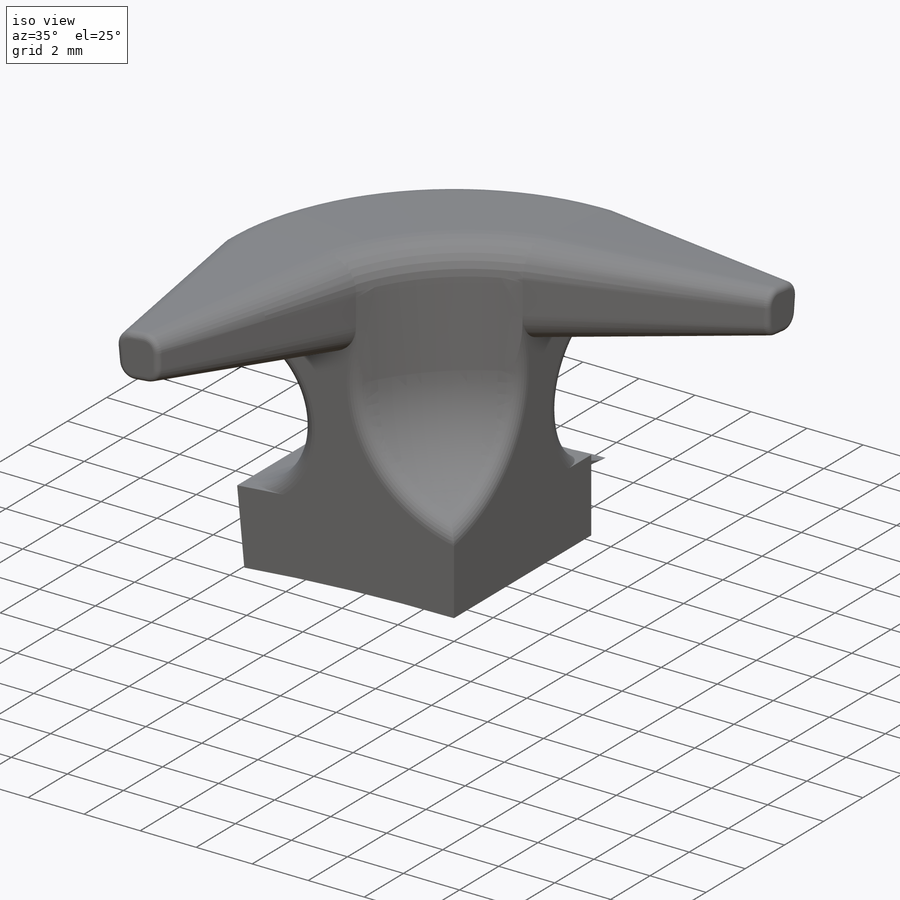
[diagram: iso view]
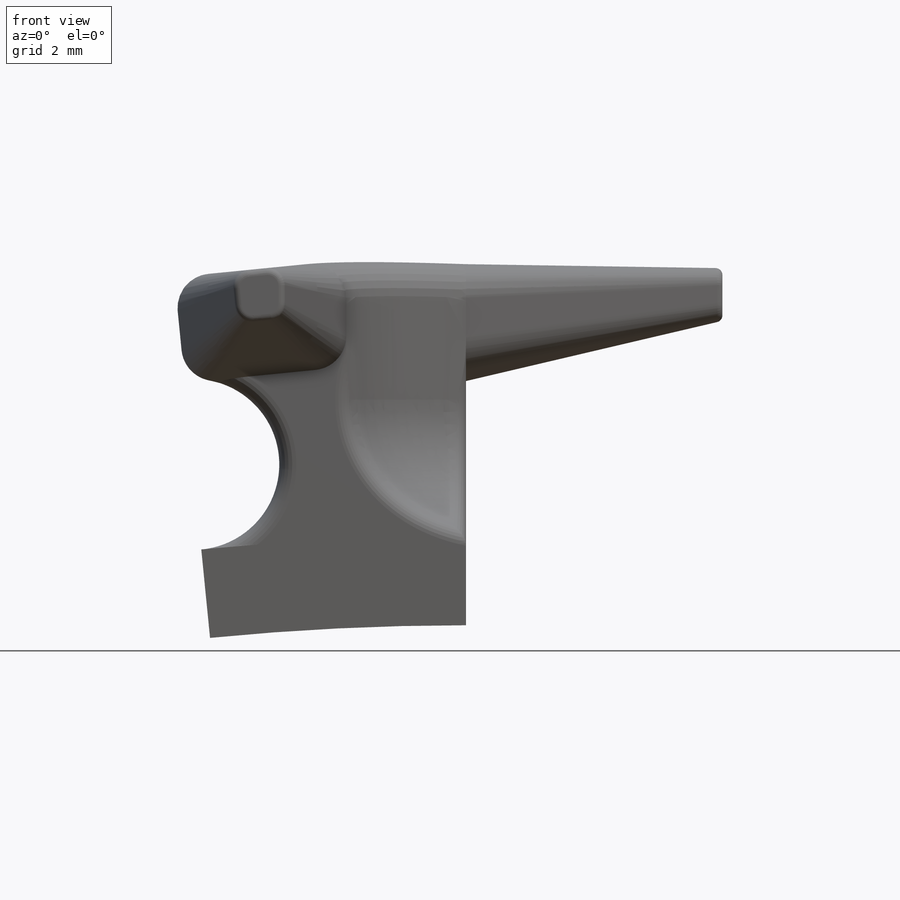
[diagram: front view]
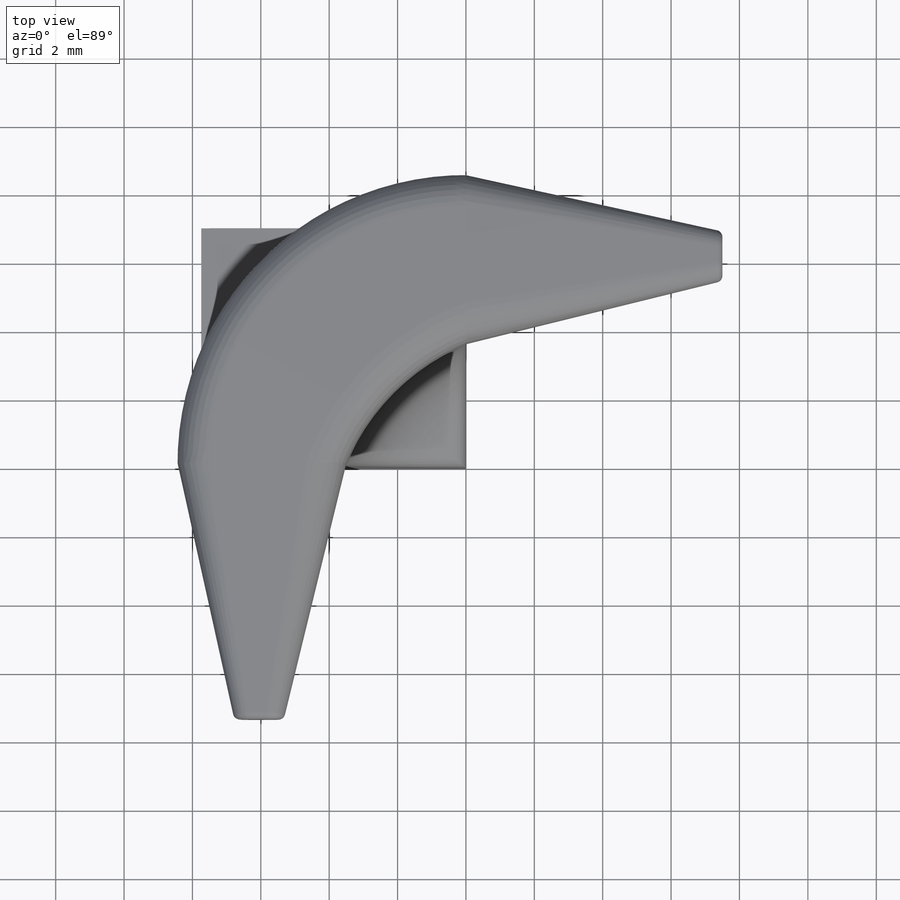
[diagram: top view]
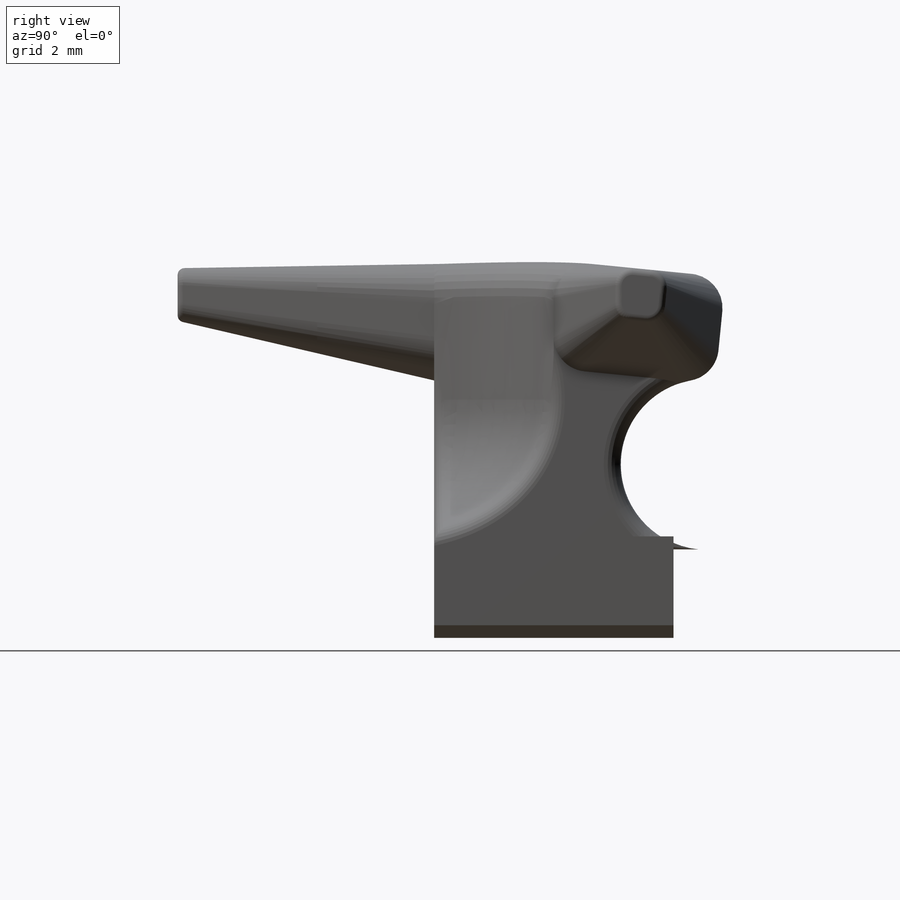
[diagram: right view]
SOLIDWORKS PART (.sldprt)
format: sldprt  version: not decoded by parser v0  size: 608,768 bytes
history: native  units: mm
features: sketch x8, fillet x4, plane x3, material x1, extrude x1, revolve x1, cut_revolve x1 (+11 scaffold rows collapsed)
feature tree (30):
  scaffold x11  (default folders/planes/origin — collapsed)
  material  "Material <not specified>"
  sketch  "Sketch3"  dims[c1.D3=78.6mm c1.D1=76.0mm c1.D2=~86.277547mm c2.D2=~5.651865deg]
  extrude  "Boss-Extrude2"  Depth=7mm
  sketch  "Sketch4"  dims[c1.D1=5.0mm c1.D2=8.0mm c1.D3=~2.794063mm c2.D3=10.0deg c2.D2=8.0mm]
  revolve  "Revolve2"  Angle=90deg
  sketch  "Sketch5"  dims[D1=2.5mm D2=2.5mm]
  plane  "Plane1"
  sketch  "Sketch6"  dims[D1=5.0mm D3=8.0mm D2=4.0mm]
  cut_revolve  "Cut-Revolve1"  Angle=360deg
  fillet  "Fillet1"  Radius=1mm
  sketch  "Sketch7"  dims[D1=1.0mm]
  plane  "Plane2"  Offset=7.5mm
  sketch  "Sketch8"  dims[c1.D3=0.5mm c1.D1=1.5mm c1.D2=1.5mm c2.D1=~1.612027mm c3.D1=90.0deg c4.D1=1.5mm c4.D2=1.5mm]
  fillet  "Fillet3"  Radius=0.2mm
  sketch  "Sketch9"  dims[D1=1.0mm]
  plane  "Plane3"  Offset=7.5mm
  sketch  "Sketch10"  dims[D3=0.5mm D1=1.5mm D2=1.5mm]
  fillet  "Fillet4"  Radius=0.2mm
  fillet  "Fillet5"  Radius=0.5mm
decode coverage: 15 of 15 modeling features carry decoded parameters
note: ~ marks probable driven/reference dimensions
note: suppression state not decoded; provenance and decode notes live in map.json
